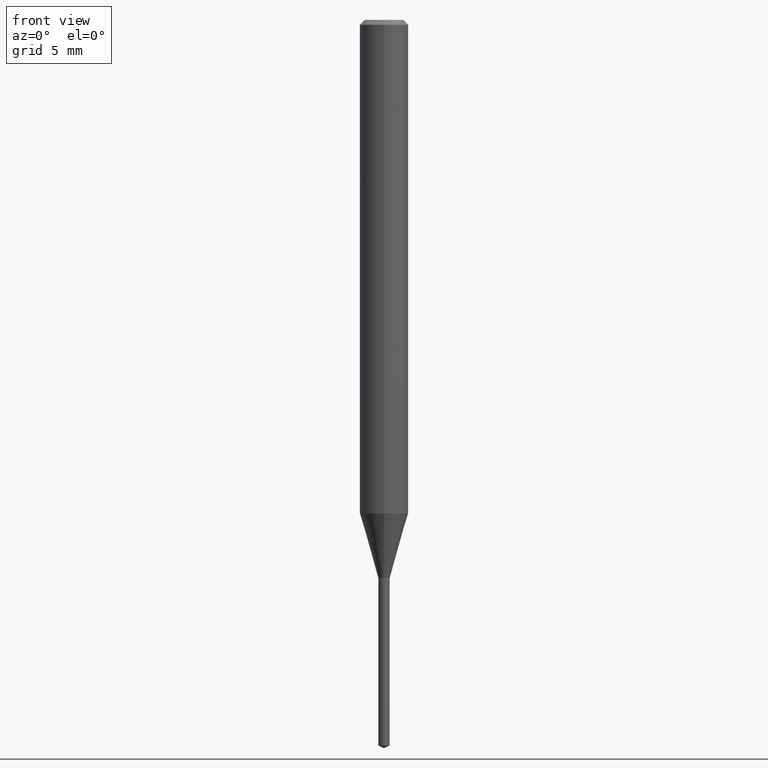
[diagram: clean part render]
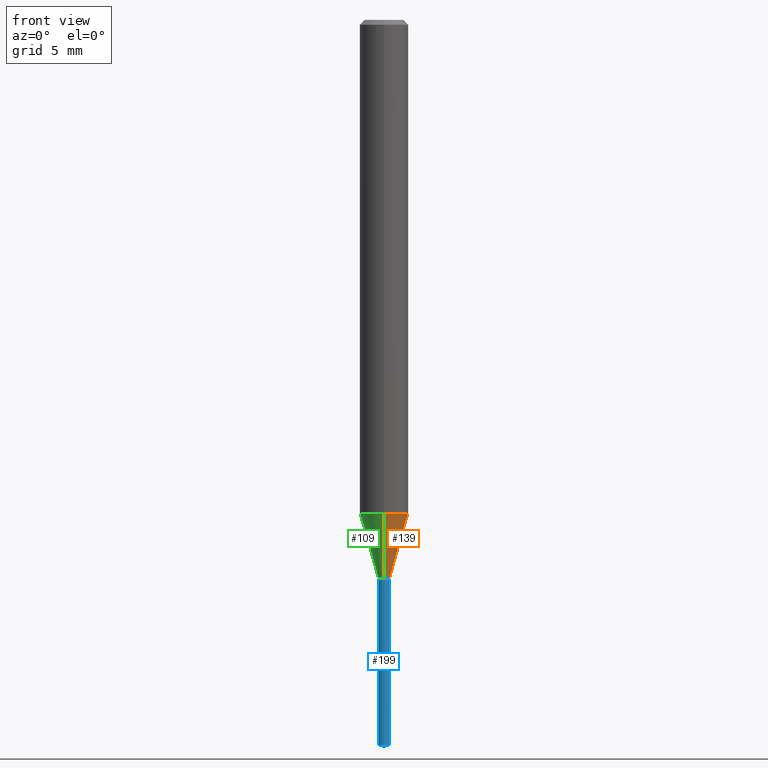
[diagram: same view with three faces highlighted in distinct colors, each labeled with its STEP entity id]
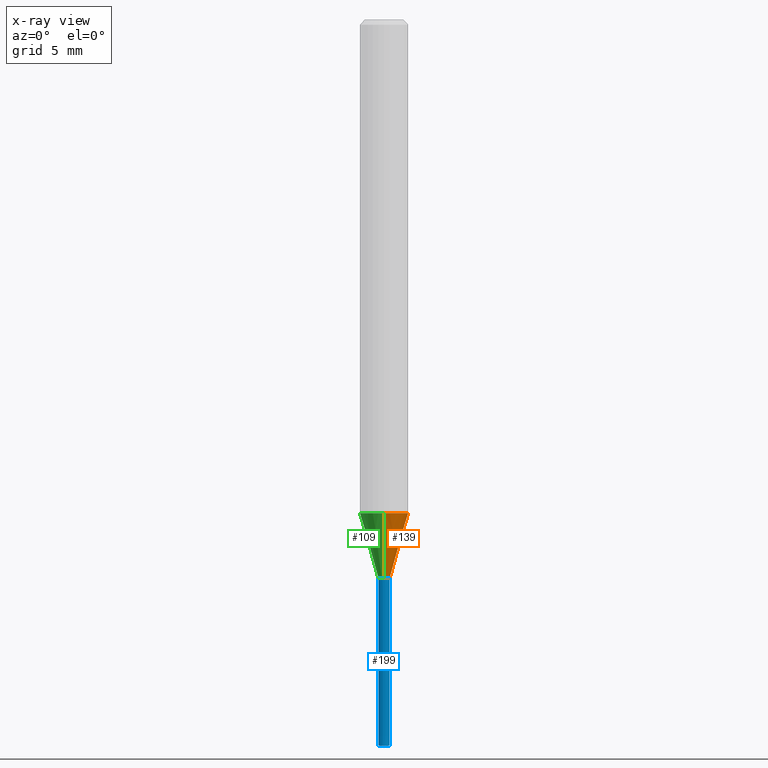
[diagram: x-ray of the same camera — body ghosted, the three highlighted faces saturated]
A machine part, front view with three faces highlighted in distinct colors.
The next image is the same camera in x-ray (body ghosted, the three faces saturated) — at least one of them is partly hidden behind the body in this view.
Their STEP definitions:

[orange] entity #139 — the highlighted conical surface has half-angle 16.001 deg.
#101=EDGE_CURVE('',#143,#167,#237,.T.);
#111=VERTEX_POINT('',#250);
#135=EDGE_CURVE('',#173,#111,#277,.T.);
#137=EDGE_CURVE('',#111,#143,#279,.T.);
#139=ADVANCED_FACE('',(#281),#282,.T.);
#143=VERTEX_POINT('',#286);
#167=VERTEX_POINT('',#314);
#171=EDGE_CURVE('',#173,#167,#318,.T.);
#173=VERTEX_POINT('',#320);
#237=LINE('',#380,#381);
#250=CARTESIAN_POINT('',(0.0,0.35,-34.4991339745962));
#277=LINE('',#431,#432);
#279=CIRCLE('',#435,0.35);
#281=FACE_OUTER_BOUND('',#437,.T.);
#282=CONICAL_SURFACE('',#438,0.925,0.279278622561771);
#286=CARTESIAN_POINT('',(4.28612223837832E-017,-0.35,-34.4991339745962));
#314=CARTESIAN_POINT('',(1.83690953073357E-016,-1.5,-30.489));
#318=CIRCLE('',#485,1.5);
#320=CARTESIAN_POINT('',(0.0,1.5,-30.489));
#380=CARTESIAN_POINT('',(1.1327608772857E-016,-0.925,-32.4940669872981));
#381=VECTOR('',#546,1.0);
#431=CARTESIAN_POINT('',(-1.1327608772857E-016,0.925,-32.4940669872981));
#432=VECTOR('',#610,1.0);
#435=AXIS2_PLACEMENT_3D('',#611,#612,#613);
#437=EDGE_LOOP('',(#615,#616,#617,#618));
#438=AXIS2_PLACEMENT_3D('',#619,#620,#621);
#485=AXIS2_PLACEMENT_3D('',#667,#668,#669);
#546=DIRECTION('',(3.37577795527378E-017,-0.275662293008437,0.961254544963679));
#610=DIRECTION('',(3.37577795527378E-017,-0.275662293008437,-0.961254544963679));
#611=CARTESIAN_POINT('',(0.0,0.0,-34.4991339745962));
#612=DIRECTION('',(0.0,0.0,-1.0));
#613=DIRECTION('',(0.0,1.0,0.0));
#615=ORIENTED_EDGE('',*,*,#135,.F.);
#616=ORIENTED_EDGE('',*,*,#171,.T.);
#617=ORIENTED_EDGE('',*,*,#101,.F.);
#618=ORIENTED_EDGE('',*,*,#137,.F.);
#619=CARTESIAN_POINT('',(0.0,0.0,-32.4940669872981));
#620=DIRECTION('',(-0.0,-0.0,1.0));
#621=DIRECTION('',(0.0,1.0,0.0));
#667=CARTESIAN_POINT('',(0.0,0.0,-30.489));
#668=DIRECTION('',(0.0,0.0,-1.0));
#669=DIRECTION('',(0.0,1.0,0.0));

[blue] entity #199 — the highlighted conical surface has half-angle 0.006 deg.
#95=VERTEX_POINT('',#230);
#113=EDGE_CURVE('',#95,#203,#252,.T.);
#129=EDGE_CURVE('',#203,#179,#270,.T.);
#155=VERTEX_POINT('',#300);
#157=EDGE_CURVE('',#155,#179,#302,.T.);
#179=VERTEX_POINT('',#326);
#185=EDGE_CURVE('',#155,#95,#332,.T.);
#199=ADVANCED_FACE('',(#348),#349,.T.);
#203=VERTEX_POINT('',#353);
#230=CARTESIAN_POINT('',(0.351,4.29836830191654E-017,-34.5));
#252=CIRCLE('',#397,0.351);
#270=LINE('',#422,#423);
#300=CARTESIAN_POINT('',(0.35,4.28612223837832E-017,-44.83679232));
#302=CIRCLE('',#465,0.35);
#326=CARTESIAN_POINT('',(-0.35,0.0,-44.83679232));
#332=LINE('',#501,#502);
#348=FACE_OUTER_BOUND('',#525,.T.);
#349=CONICAL_SURFACE('',#526,0.3505,9.67418098306479E-005);
#353=CARTESIAN_POINT('',(-0.351,0.0,-34.5));
#397=AXIS2_PLACEMENT_3D('',#569,#570,#571);
#422=CARTESIAN_POINT('',(-0.3505,-4.29224527014743E-017,-39.66839616));
#423=VECTOR('',#601,1.0);
#465=AXIS2_PLACEMENT_3D('',#646,#647,#648);
#501=CARTESIAN_POINT('',(0.3505,4.29224527014743E-017,-39.66839616));
#502=VECTOR('',#673,1.0);
#525=EDGE_LOOP('',(#694,#695,#696,#697));
#526=AXIS2_PLACEMENT_3D('',#698,#699,#700);
#569=CARTESIAN_POINT('',(0.0,0.0,-34.5));
#570=DIRECTION('',(0.0,0.0,-1.0));
#571=DIRECTION('',(-1.0,0.0,0.0));
#601=DIRECTION('',(9.67418096797471E-005,1.18470634814094E-020,-0.999999995320511));
#646=CARTESIAN_POINT('',(0.0,0.0,-44.83679232));
#647=DIRECTION('',(0.0,0.0,-1.0));
#648=DIRECTION('',(-1.0,0.0,0.0));
#673=DIRECTION('',(9.67418096797471E-005,1.18470634814094E-020,0.999999995320511));
#694=ORIENTED_EDGE('',*,*,#129,.T.);
#695=ORIENTED_EDGE('',*,*,#157,.F.);
#696=ORIENTED_EDGE('',*,*,#185,.T.);
#697=ORIENTED_EDGE('',*,*,#113,.T.);
#698=CARTESIAN_POINT('',(0.0,0.0,-39.66839616));
#699=DIRECTION('',(-0.0,-0.0,1.0));
#700=DIRECTION('',(-1.0,0.0,0.0));

[green] entity #109 — the highlighted conical surface has half-angle 16.001 deg.
#101=EDGE_CURVE('',#143,#167,#237,.T.);
#109=ADVANCED_FACE('',(#247),#248,.T.);
#111=VERTEX_POINT('',#250);
#135=EDGE_CURVE('',#173,#111,#277,.T.);
#141=EDGE_CURVE('',#167,#173,#284,.T.);
#143=VERTEX_POINT('',#286);
#167=VERTEX_POINT('',#314);
#173=VERTEX_POINT('',#320);
#175=EDGE_CURVE('',#143,#111,#322,.T.);
#237=LINE('',#380,#381);
#247=FACE_OUTER_BOUND('',#391,.T.);
#248=CONICAL_SURFACE('',#392,0.925,0.279278622561771);
#250=CARTESIAN_POINT('',(0.0,0.35,-34.4991339745962));
#277=LINE('',#431,#432);
#284=CIRCLE('',#441,1.5);
#286=CARTESIAN_POINT('',(4.28612223837832E-017,-0.35,-34.4991339745962));
#314=CARTESIAN_POINT('',(1.83690953073357E-016,-1.5,-30.489));
#320=CARTESIAN_POINT('',(0.0,1.5,-30.489));
#322=CIRCLE('',#490,0.35);
#380=CARTESIAN_POINT('',(1.1327608772857E-016,-0.925,-32.4940669872981));
#381=VECTOR('',#546,1.0);
#391=EDGE_LOOP('',(#562,#563,#564,#565));
#392=AXIS2_PLACEMENT_3D('',#566,#567,#568);
#431=CARTESIAN_POINT('',(-1.1327608772857E-016,0.925,-32.4940669872981));
#432=VECTOR('',#610,1.0);
#441=AXIS2_PLACEMENT_3D('',#622,#623,#624);
#490=AXIS2_PLACEMENT_3D('',#670,#671,#672);
#546=DIRECTION('',(3.37577795527378E-017,-0.275662293008437,0.961254544963679));
#562=ORIENTED_EDGE('',*,*,#135,.T.);
#563=ORIENTED_EDGE('',*,*,#175,.F.);
#564=ORIENTED_EDGE('',*,*,#101,.T.);
#565=ORIENTED_EDGE('',*,*,#141,.T.);
#566=CARTESIAN_POINT('',(0.0,0.0,-32.4940669872981));
#567=DIRECTION('',(-0.0,-0.0,1.0));
#568=DIRECTION('',(0.0,1.0,0.0));
#610=DIRECTION('',(3.37577795527378E-017,-0.275662293008437,-0.961254544963679));
#622=CARTESIAN_POINT('',(0.0,0.0,-30.489));
#623=DIRECTION('',(0.0,0.0,-1.0));
#624=DIRECTION('',(0.0,1.0,0.0));
#670=CARTESIAN_POINT('',(0.0,0.0,-34.4991339745962));
#671=DIRECTION('',(0.0,0.0,-1.0));
#672=DIRECTION('',(0.0,1.0,0.0));